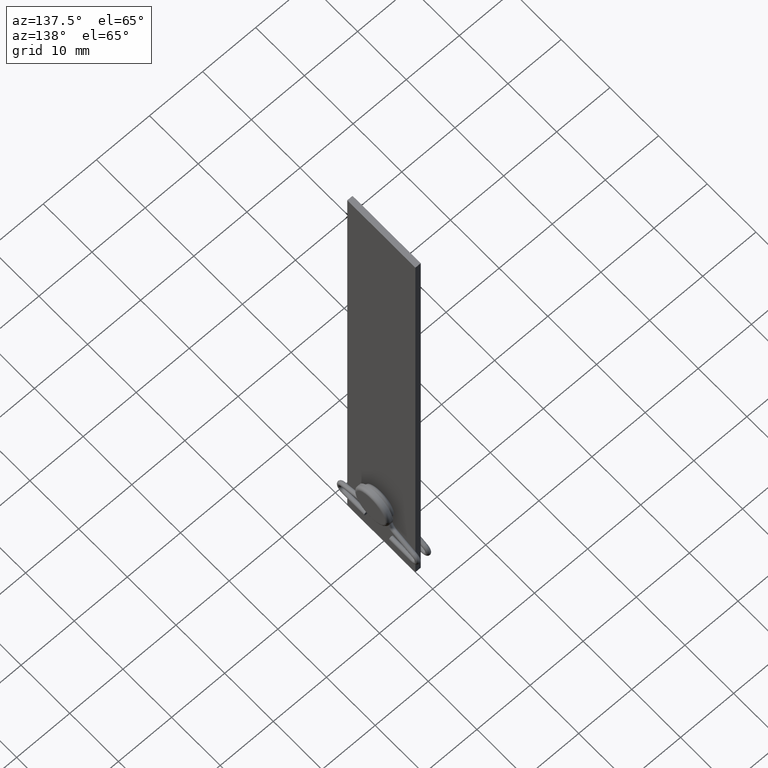
[diagram: clean part render]
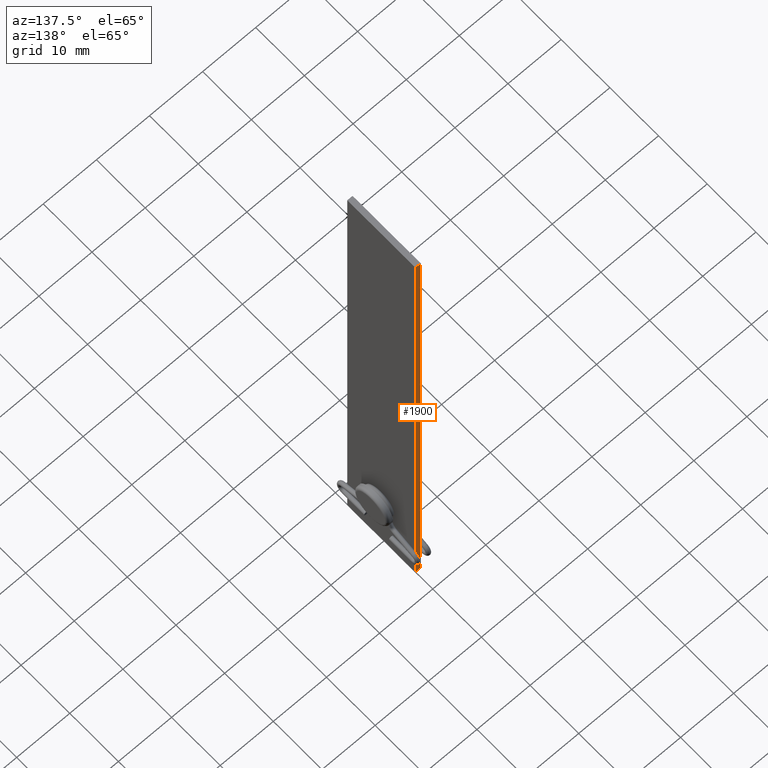
[diagram: same view with one face highlighted and labeled with its STEP entity id]
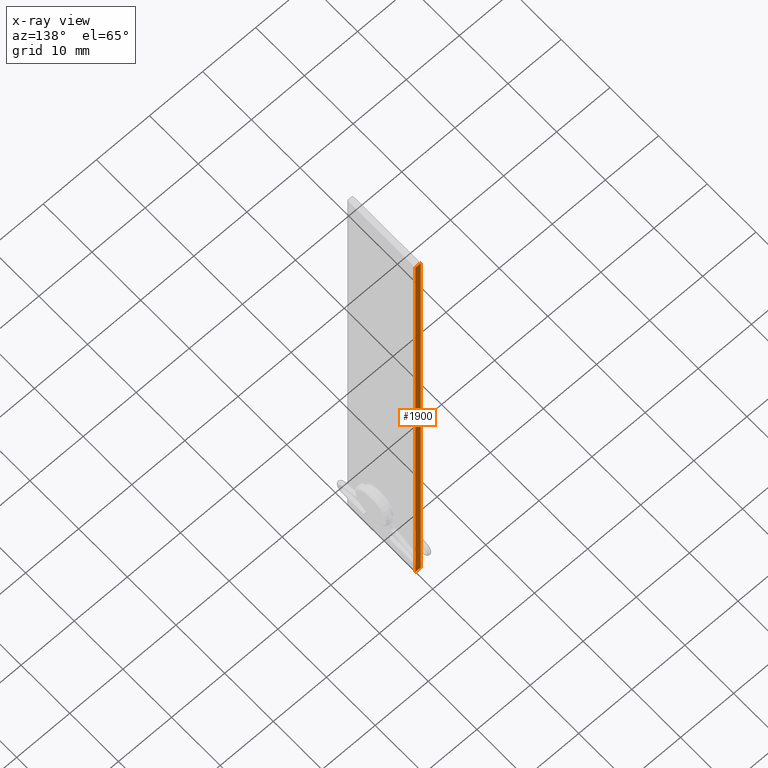
[diagram: x-ray of the same camera — body ghosted, the highlighted face saturated]
A machine part, auxiliary view. The second image highlights one B-rep face of the part: STEP entity #1900.
The next image is the same camera in x-ray: the body ghosted, the highlighted face saturated — about 0% of this face is hidden behind the body in this view.
In plain terms, the highlighted planar face has unit normal (0, 1, 0).
Its self-contained STEP definition (entity closure, byte-faithful):
#91 = CARTESIAN_POINT ( 'NONE',  ( 0.4999999999999990563, 7.000000000000000888, 100.0000000000000000 ) ) ;
#193 = VERTEX_POINT ( 'NONE', #274 ) ;
#216 = FACE_OUTER_BOUND ( 'NONE', #1984, .T. ) ;
#241 = LINE ( 'NONE', #2145, #2776 ) ;
#242 = EDGE_CURVE ( 'NONE', #193, #2610, #241, .T. ) ;
#274 = CARTESIAN_POINT ( 'NONE',  ( -0.5000000000000007772, 7.000000000000000888, 0.000000000000000000 ) ) ;
#403 = ORIENTED_EDGE ( 'NONE', *, *, #1934, .T. ) ;
#433 = CARTESIAN_POINT ( 'NONE',  ( -0.5000000000000007772, 7.000000000000000888, 100.0000000000000000 ) ) ;
#716 = LINE ( 'NONE', #2861, #1675 ) ;
#990 = VECTOR ( 'NONE', #2491, 1000.000000000000000 ) ;
#1076 = ORIENTED_EDGE ( 'NONE', *, *, #1275, .F. ) ;
#1234 = CARTESIAN_POINT ( 'NONE',  ( -0.5000000000000007772, 7.000000000000000888, 100.0000000000000000 ) ) ;
#1275 = EDGE_CURVE ( 'NONE', #1666, #193, #716, .T. ) ;
#1358 = VECTOR ( 'NONE', #2609, 1000.000000000000000 ) ;
#1556 = EDGE_CURVE ( 'NONE', #1666, #1579, #2508, .T. ) ;
#1579 = VERTEX_POINT ( 'NONE', #91 ) ;
#1650 = CARTESIAN_POINT ( 'NONE',  ( 0.4999999999999990563, 7.000000000000000888, 100.0000000000000000 ) ) ;
#1666 = VERTEX_POINT ( 'NONE', #2265 ) ;
#1675 = VECTOR ( 'NONE', #2931, 1000.000000000000000 ) ;
#1900 = ADVANCED_FACE ( 'NONE', ( #216 ), #2906, .T. ) ;
#1932 = DIRECTION ( 'NONE',  ( 0.000000000000000000, -0.000000000000000000, 1.000000000000000000 ) ) ;
#1934 = EDGE_CURVE ( 'NONE', #1579, #2610, #2581, .T. ) ;
#1984 = EDGE_LOOP ( 'NONE', ( #3018, #1076, #2680, #403 ) ) ;
#2145 = CARTESIAN_POINT ( 'NONE',  ( -0.5000000000000007772, 7.000000000000000888, 0.000000000000000000 ) ) ;
#2265 = CARTESIAN_POINT ( 'NONE',  ( -0.5000000000000007772, 7.000000000000000888, 100.0000000000000000 ) ) ;
#2302 = AXIS2_PLACEMENT_3D ( 'NONE', #433, #2853, #1932 ) ;
#2491 = DIRECTION ( 'NONE',  ( 1.000000000000000000, 0.000000000000000000, 0.000000000000000000 ) ) ;
#2508 = LINE ( 'NONE', #1234, #990 ) ;
#2581 = LINE ( 'NONE', #1650, #1358 ) ;
#2609 = DIRECTION ( 'NONE',  ( -0.000000000000000000, -0.000000000000000000, -1.000000000000000000 ) ) ;
#2610 = VERTEX_POINT ( 'NONE', #2648 ) ;
#2648 = CARTESIAN_POINT ( 'NONE',  ( 0.4999999999999990563, 7.000000000000000888, 0.000000000000000000 ) ) ;
#2680 = ORIENTED_EDGE ( 'NONE', *, *, #1556, .T. ) ;
#2776 = VECTOR ( 'NONE', #3102, 1000.000000000000000 ) ;
#2853 = DIRECTION ( 'NONE',  ( 0.000000000000000000, 1.000000000000000000, 0.000000000000000000 ) ) ;
#2861 = CARTESIAN_POINT ( 'NONE',  ( -0.5000000000000007772, 7.000000000000000888, 100.0000000000000000 ) ) ;
#2906 = PLANE ( 'NONE',  #2302 ) ;
#2931 = DIRECTION ( 'NONE',  ( -0.000000000000000000, -0.000000000000000000, -1.000000000000000000 ) ) ;
#3018 = ORIENTED_EDGE ( 'NONE', *, *, #242, .F. ) ;
#3102 = DIRECTION ( 'NONE',  ( 1.000000000000000000, 0.000000000000000000, 0.000000000000000000 ) ) ;